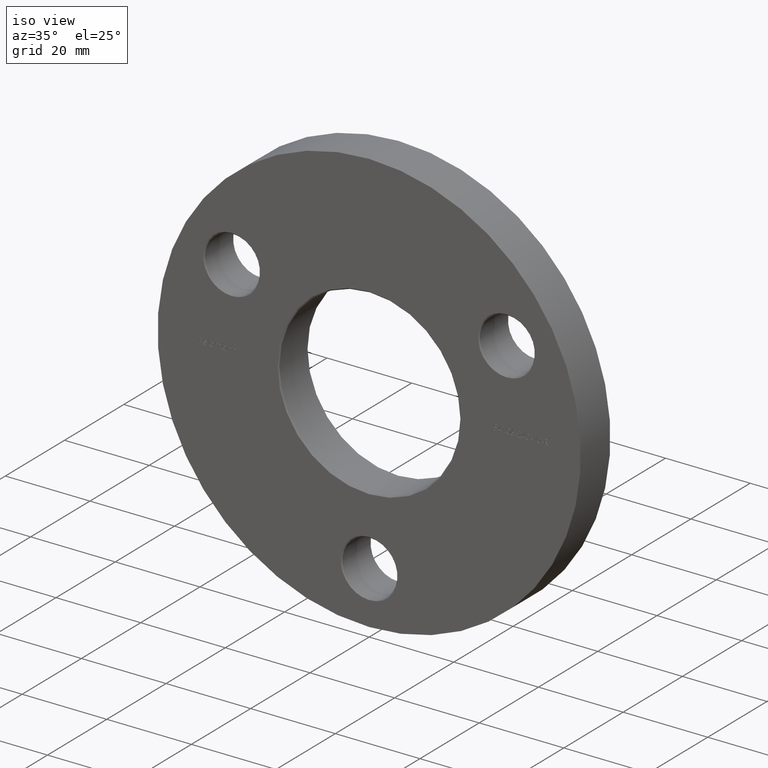
[diagram: clean part render]
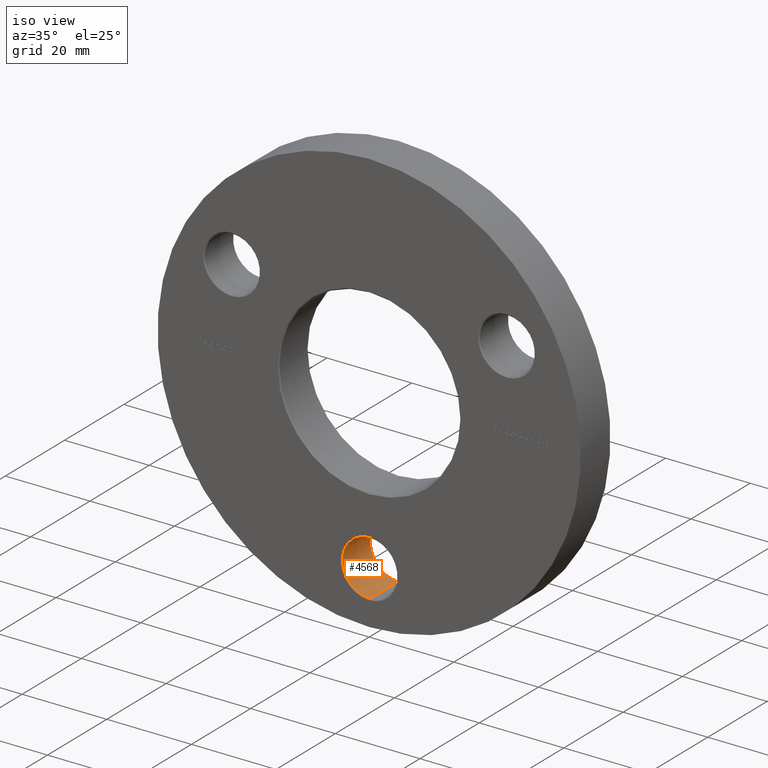
[diagram: same view with one face highlighted and labeled with its STEP entity id]
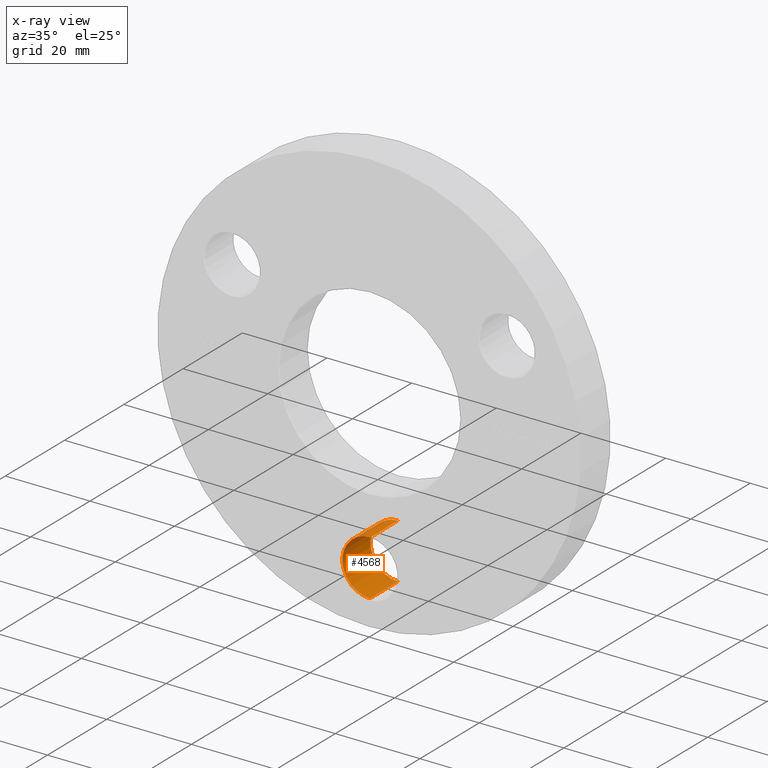
[diagram: x-ray of the same camera — body ghosted, the highlighted face saturated]
A machine part, iso view. The second image highlights one B-rep face of the part: STEP entity #4568.
The next image is the same camera in x-ray: the body ghosted, the highlighted face saturated — about 0% of this face is hidden behind the body in this view.
In plain terms, the highlighted cylindrical surface (edge-blend (fillet) strip) has radius 6.5 mm, axis along (-0, -1, -0).
Its self-contained STEP definition (entity closure, byte-faithful):
#230 = DIRECTION ( 'NONE',  ( 0.000000000000000000, 0.000000000000000000, 1.000000000000000000 ) ) ;
#354 = ORIENTED_EDGE ( 'NONE', *, *, #12467, .T. ) ;
#1565 = LINE ( 'NONE', #7359, #9892 ) ;
#1700 = CYLINDRICAL_SURFACE ( 'NONE', #6172, 6.499999999999999112 ) ;
#2202 = ORIENTED_EDGE ( 'NONE', *, *, #9052, .T. ) ;
#2520 = CIRCLE ( 'NONE', #7515, 6.499999999999999112 ) ;
#3013 = CARTESIAN_POINT ( 'NONE',  ( 7.960204194457797449E-16, 9.750000000000010658, -31.00000000000000000 ) ) ;
#3782 = VECTOR ( 'NONE', #5933, 1000.000000000000000 ) ;
#4304 = CARTESIAN_POINT ( 'NONE',  ( 0.000000000000000000, 0.2499999999999985012, -37.50000000000000000 ) ) ;
#4568 = ADVANCED_FACE ( 'NONE', ( #5307 ), #1700, .F. ) ;
#5307 = FACE_OUTER_BOUND ( 'NONE', #12341, .T. ) ;
#5494 = AXIS2_PLACEMENT_3D ( 'NONE', #11760, #10498, #230 ) ;
#5805 = CARTESIAN_POINT ( 'NONE',  ( 7.960204194457797449E-16, 0.2499999999999985012, -31.00000000000000000 ) ) ;
#5933 = DIRECTION ( 'NONE',  ( -0.000000000000000000, -1.000000000000000000, -0.000000000000000000 ) ) ;
#6172 = AXIS2_PLACEMENT_3D ( 'NONE', #8654, #13249, #13142 ) ;
#6505 = CARTESIAN_POINT ( 'NONE',  ( 0.000000000000000000, 0.2499999999999985012, -44.00000000000000000 ) ) ;
#6547 = DIRECTION ( 'NONE',  ( 0.000000000000000000, 0.000000000000000000, 1.000000000000000000 ) ) ;
#7359 = CARTESIAN_POINT ( 'NONE',  ( 0.000000000000000000, 10.00000000000000000, -44.00000000000000000 ) ) ;
#7515 = AXIS2_PLACEMENT_3D ( 'NONE', #4304, #7627, #6547 ) ;
#7627 = DIRECTION ( 'NONE',  ( -0.000000000000000000, -1.000000000000000000, -0.000000000000000000 ) ) ;
#8428 = DIRECTION ( 'NONE',  ( -0.000000000000000000, -1.000000000000000000, -0.000000000000000000 ) ) ;
#8654 = CARTESIAN_POINT ( 'NONE',  ( 0.000000000000000000, 10.00000000000000000, -37.50000000000000000 ) ) ;
#8818 = LINE ( 'NONE', #13667, #3782 ) ;
#9052 = EDGE_CURVE ( 'NONE', #12766, #14931, #2520, .T. ) ;
#9892 = VECTOR ( 'NONE', #8428, 1000.000000000000000 ) ;
#10127 = EDGE_CURVE ( 'NONE', #12172, #12766, #8818, .T. ) ;
#10498 = DIRECTION ( 'NONE',  ( 0.000000000000000000, 1.000000000000000000, 0.000000000000000000 ) ) ;
#11760 = CARTESIAN_POINT ( 'NONE',  ( 0.000000000000000000, 9.750000000000010658, -37.50000000000000000 ) ) ;
#12092 = EDGE_CURVE ( 'NONE', #14961, #14931, #1565, .T. ) ;
#12172 = VERTEX_POINT ( 'NONE', #3013 ) ;
#12341 = EDGE_LOOP ( 'NONE', ( #354, #14289, #2202, #14867 ) ) ;
#12467 = EDGE_CURVE ( 'NONE', #14961, #12172, #14099, .T. ) ;
#12766 = VERTEX_POINT ( 'NONE', #5805 ) ;
#12968 = CARTESIAN_POINT ( 'NONE',  ( 0.000000000000000000, 9.750000000000010658, -44.00000000000000000 ) ) ;
#13142 = DIRECTION ( 'NONE',  ( 0.000000000000000000, 0.000000000000000000, -1.000000000000000000 ) ) ;
#13249 = DIRECTION ( 'NONE',  ( -0.000000000000000000, -1.000000000000000000, -0.000000000000000000 ) ) ;
#13667 = CARTESIAN_POINT ( 'NONE',  ( 7.960204194457795477E-16, 10.00000000000000000, -31.00000000000000000 ) ) ;
#14099 = CIRCLE ( 'NONE', #5494, 6.499999999999999112 ) ;
#14289 = ORIENTED_EDGE ( 'NONE', *, *, #10127, .T. ) ;
#14867 = ORIENTED_EDGE ( 'NONE', *, *, #12092, .F. ) ;
#14931 = VERTEX_POINT ( 'NONE', #6505 ) ;
#14961 = VERTEX_POINT ( 'NONE', #12968 ) ;